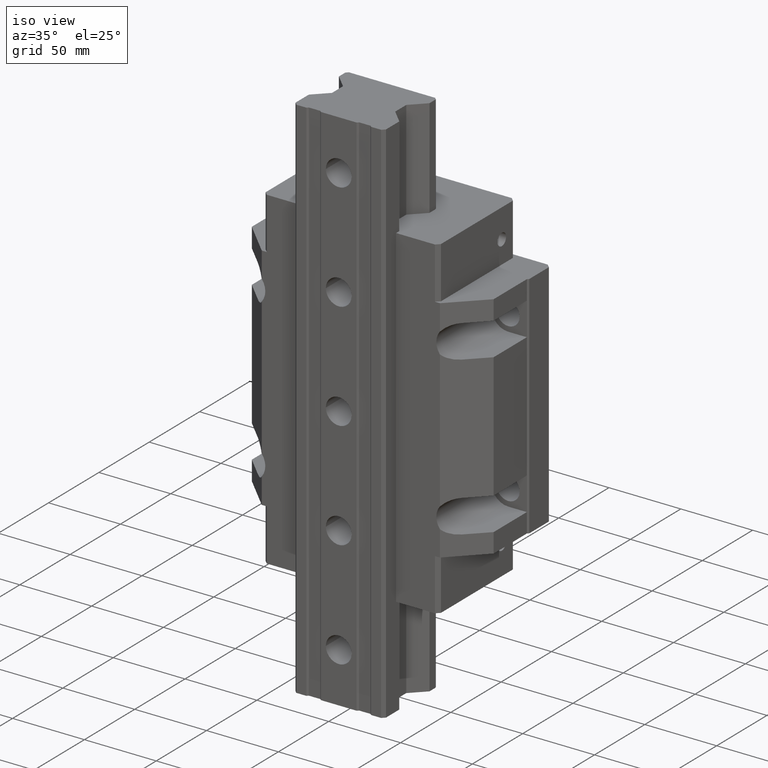
[diagram: clean part render]
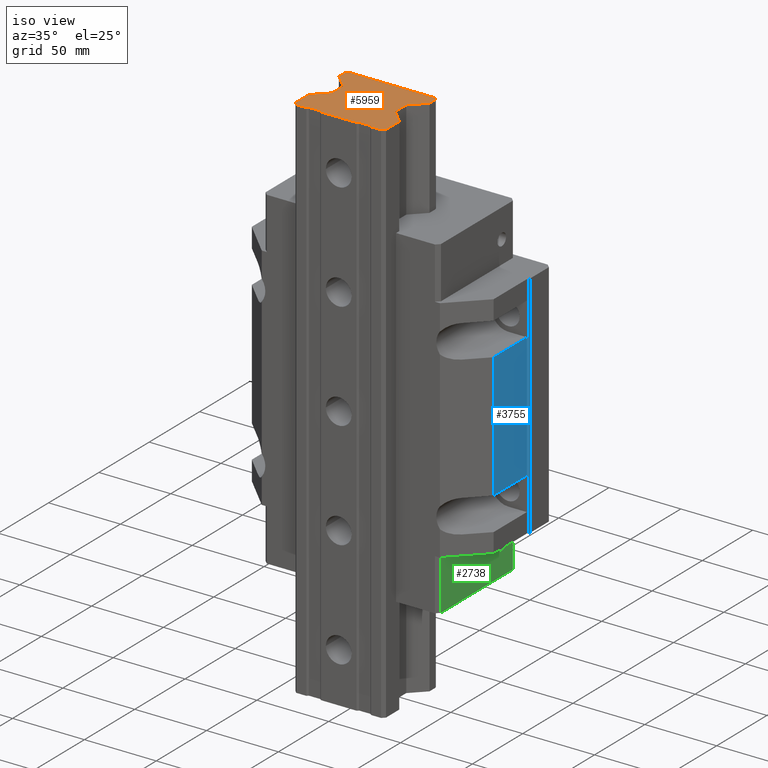
[diagram: same view with three faces highlighted in distinct colors, each labeled with its STEP entity id]
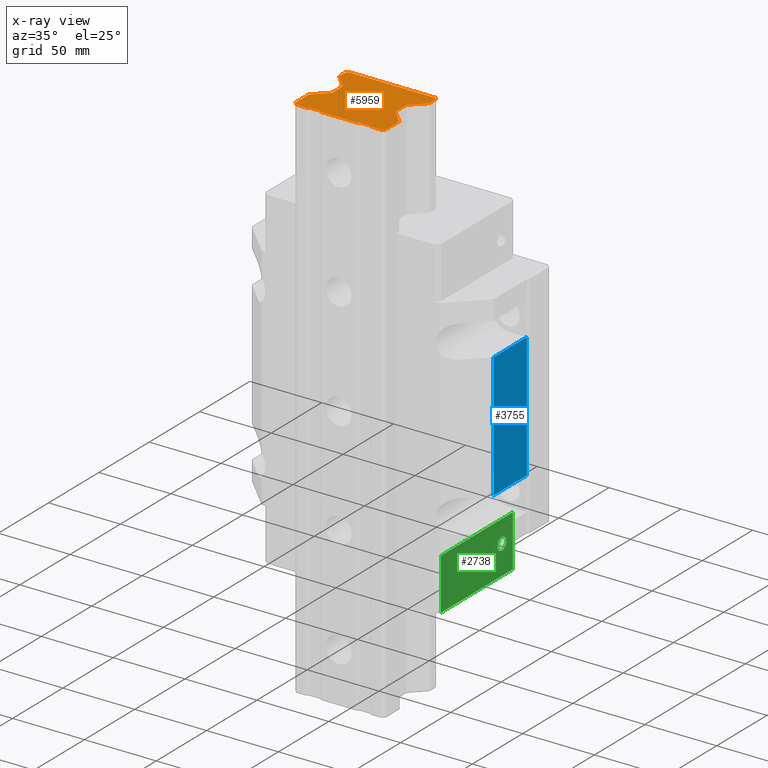
[diagram: x-ray of the same camera — body ghosted, the three highlighted faces saturated]
A machine part, iso view with three faces highlighted in distinct colors.
The next image is the same camera in x-ray (body ghosted, the three faces saturated) — at least one of them is partly hidden behind the body in this view.
Their STEP definitions:

[orange] entity #5959 — the highlighted planar face has unit normal (0, 0, 1).
#4506=DIRECTION('',(-1.192119434070E-6,9.999999999993E-1,0.E0));
#4507=VECTOR('',#4506,1.321909750735E1);
#4508=CARTESIAN_POINT('',(3.149996388354E1,-8.800006839805E1,1.85E2));
#4509=LINE('',#4508,#4507);
#4518=DIRECTION('',(9.999999999995E-1,-9.523649068492E-7,0.E0));
#4519=VECTOR('',#4518,7.000118888879E0);
#4520=CARTESIAN_POINT('',(2.249994305552E1,-8.99999895E1,1.85E2));
#4521=LINE('',#4520,#4519);
#4530=DIRECTION('',(1.E0,-7.460689785897E-14,0.E0));
#4531=VECTOR('',#4530,8.000009585799E0);
#4532=CARTESIAN_POINT('',(1.349994141586E1,-8.8999987E1,1.85E2));
#4533=LINE('',#4532,#4531);
#4542=DIRECTION('',(9.999999999998E-1,-5.787036611730E-7,0.E0));
#4543=VECTOR('',#4542,2.499998958334E1);
#4544=CARTESIAN_POINT('',(-1.250004234953E1,-8.999996674538E1,1.85E2));
#4545=LINE('',#4544,#4543);
#4604=DIRECTION('',(9.999999999993E-1,-1.157407514335E-6,0.E0));
#4605=VECTOR('',#4604,8.000009585764E0);
#4606=CARTESIAN_POINT('',(-2.150006313121E1,-8.899994591203E1,1.85E2));
#4607=LINE('',#4606,#4605);
#4616=DIRECTION('',(1.E0,-2.050434927234E-7,0.E0));
#4617=VECTOR('',#4616,7.000118888904E0);
#4618=CARTESIAN_POINT('',(-2.950016747676E1,-8.999993794889E1,1.85E2));
#4619=LINE('',#4618,#4617);
#4628=DIRECTION('',(-4.698236218248E-7,-9.999999999999E-1,-1.075030126273E-14));
#4629=VECTOR('',#4628,1.321902927918E1);
#4630=CARTESIAN_POINT('',(-3.150006690872E1,-7.478096871983E1,1.85E2));
#4631=LINE('',#4630,#4629);
#4640=DIRECTION('',(-6.741184540886E-14,-1.E0,0.E0));
#4641=VECTOR('',#4640,1.096193763438E1);
#4642=CARTESIAN_POINT('',(-2.200005994421E1,-5.431902284949E1,1.85E2));
#4643=LINE('',#4642,#4641);
#4648=DIRECTION('',(1.791971611702E-8,-1.E0,1.925325943885E-14));
#4649=VECTOR('',#4648,5.904809940505E0);
#4650=CARTESIAN_POINT('',(-3.150005997114E1,-3.891421297786E1,1.85E2));
#4651=LINE('',#4650,#4649);
#4668=DIRECTION('',(-9.999999999998E-1,5.748455098222E-7,0.E0));
#4669=VECTOR('',#4668,5.999994313287E1);
#4670=CARTESIAN_POINT('',(2.999992672841E1,-3.699998904322E1,1.85E2));
#4671=LINE('',#4670,#4669);
#4784=DIRECTION('',(1.791960607593E-8,1.E0,-1.925326015351E-14));
#4785=VECTOR('',#4784,5.904809721325E0);
#4786=CARTESIAN_POINT('',(3.149993986533E1,-4.481902291836E1,1.85E2));
#4787=LINE('',#4786,#4785);
#4796=DIRECTION('',(-9.204309661595E-14,1.E0,0.E0));
#4797=VECTOR('',#4796,1.096193763438E1);
#4798=CARTESIAN_POINT('',(2.199993994421E1,-6.528096048387E1,1.85E2));
#4799=LINE('',#4798,#4797);
#4800=DIRECTION('',(7.071066983338E-1,-7.071068640392E-1,0.E0));
#4801=VECTOR('',#4800,1.343504198584E1);
#4802=CARTESIAN_POINT('',(2.199993994421E1,-6.528096048387E1,1.85E2));
#4803=LINE('',#4802,#4801);
#4804=DIRECTION('',(-7.071022149275E-1,-7.071113474161E-1,0.E0));
#4805=VECTOR('',#4804,2.828306710001E0);
#4806=CARTESIAN_POINT('',(3.149996388354E1,-8.800006839805E1,1.85E2));
#4807=LINE('',#4806,#4805);
#4808=DIRECTION('',(-7.071030879003E-1,7.071104744535E-1,0.E0));
#4809=VECTOR('',#4808,1.414209711394E0);
#4810=CARTESIAN_POINT('',(2.249994305552E1,-8.99999895E1,1.85E2));
#4811=LINE('',#4810,#4809);
#4812=DIRECTION('',(-7.071067702587E-1,-7.071067921144E-1,2.009730008553E-14));
#4813=VECTOR('',#4812,1.414205356414E0);
#4814=CARTESIAN_POINT('',(1.349994141586E1,-8.8999987E1,1.85E2));
#4815=LINE('',#4814,#4813);
#4816=DIRECTION('',(-7.071066474888E-1,7.071069148842E-1,0.E0));
#4817=VECTOR('',#4816,1.414229663194E0);
#4818=CARTESIAN_POINT('',(-1.250004234953E1,-8.999996674538E1,1.85E2));
#4819=LINE('',#4818,#4817);
#4820=DIRECTION('',(-7.071039472282E-1,-7.071096151335E-1,0.E0));
#4821=VECTOR('',#4820,1.414198662817E0);
#4822=CARTESIAN_POINT('',(-2.150006313121E1,-8.899994591203E1,1.85E2));
#4823=LINE('',#4822,#4821);
#4824=DIRECTION('',(-7.071007161947E-1,7.071128461263E-1,0.E0));
#4825=VECTOR('',#4824,2.828317942227E0);
#4826=CARTESIAN_POINT('',(-2.950016747676E1,-8.999993794889E1,1.85E2));
#4827=LINE('',#4826,#4825);
#4828=DIRECTION('',(7.071067338682E-1,7.071068285049E-1,0.E0));
#4829=VECTOR('',#4828,1.343503959090E1);
#4830=CARTESIAN_POINT('',(-3.150006690872E1,-7.478096871983E1,1.85E2));
#4831=LINE('',#4830,#4829);
#4832=DIRECTION('',(-7.071067808142E-1,7.071067815589E-1,0.E0));
#4833=VECTOR('',#4832,1.343502873807E1);
#4834=CARTESIAN_POINT('',(-2.200005994421E1,-5.431902284949E1,1.85E2));
#4835=LINE('',#4834,#4833);
#4836=CARTESIAN_POINT('',(-3.050006E1,-3.891421356237E1,1.85E2));
#4837=DIRECTION('',(0.E0,0.E0,-1.E0));
#4838=DIRECTION('',(-9.999999999991E-1,1.315157298620E-6,0.E0));
#4839=AXIS2_PLACEMENT_3D('',#4836,#4837,#4838);
#4841=DIRECTION('',(7.071062387916E-1,7.071073235811E-1,3.329687575375E-14));
#4842=VECTOR('',#4841,1.707169744128E0);
#4843=CARTESIAN_POINT('',(-3.120716678119E1,-3.820710678119E1,1.85E2));
#4844=LINE('',#4843,#4842);
#4845=DIRECTION('',(7.071074591719E-1,-7.071061032005E-1,-3.329776966970E-14));
#4846=VECTOR('',#4845,1.707123913243E0);
#4847=CARTESIAN_POINT('',(2.999992672841E1,-3.699998904322E1,1.85E2));
#4848=LINE('',#4847,#4846);
#4849=CARTESIAN_POINT('',(3.049994E1,-3.891421356237E1,1.85E2));
#4850=DIRECTION('',(0.E0,0.E0,-1.E0));
#4851=DIRECTION('',(7.071067812118E-1,7.071067811613E-1,0.E0));
#4852=AXIS2_PLACEMENT_3D('',#4849,#4850,#4851);
#4854=DIRECTION('',(-7.071067808141E-1,-7.071067815590E-1,0.E0));
#4855=VECTOR('',#4854,1.343502873807E1);
#4856=CARTESIAN_POINT('',(3.149993986533E1,-4.481902291836E1,1.85E2));
#4857=LINE('',#4856,#4855);
#5230=CARTESIAN_POINT('',(3.149994812479E1,-7.478097089071E1,1.85E2));
#5231=VERTEX_POINT('',#5230);
#5232=CARTESIAN_POINT('',(2.199993994421E1,-6.528096048387E1,1.85E2));
#5233=VERTEX_POINT('',#5232);
#5234=CARTESIAN_POINT('',(3.149996388354E1,-8.800006839805E1,1.85E2));
#5235=VERTEX_POINT('',#5234);
#5236=CARTESIAN_POINT('',(2.950006194440E1,-8.999999616667E1,1.85E2));
#5237=VERTEX_POINT('',#5236);
#5238=CARTESIAN_POINT('',(2.249994305552E1,-8.99999895E1,1.85E2));
#5239=VERTEX_POINT('',#5238);
#5240=CARTESIAN_POINT('',(2.149995100166E1,-8.8999987E1,1.85E2));
#5241=VERTEX_POINT('',#5240);
#5242=CARTESIAN_POINT('',(1.349994141586E1,-8.8999987E1,1.85E2));
#5243=VERTEX_POINT('',#5242);
#5244=CARTESIAN_POINT('',(1.249994723380E1,-8.999998121296E1,1.85E2));
#5245=VERTEX_POINT('',#5244);
#5246=CARTESIAN_POINT('',(-1.250004234953E1,-8.999996674538E1,1.85E2));
#5247=VERTEX_POINT('',#5246);
#5268=CARTESIAN_POINT('',(-1.350005354545E1,-8.899995517130E1,1.85E2));
#5269=VERTEX_POINT('',#5268);
#5270=CARTESIAN_POINT('',(-2.150006313121E1,-8.899994591203E1,1.85E2));
#5271=VERTEX_POINT('',#5270);
#5272=CARTESIAN_POINT('',(-2.250004858785E1,-8.999993938422E1,1.85E2));
#5273=VERTEX_POINT('',#5272);
#5274=CARTESIAN_POINT('',(-2.950016747676E1,-8.999993794889E1,1.85E2));
#5275=VERTEX_POINT('',#5274);
#5276=CARTESIAN_POINT('',(-3.150007311933E1,-8.799999799901E1,1.85E2));
#5277=VERTEX_POINT('',#5276);
#5278=CARTESIAN_POINT('',(-3.150006690872E1,-7.478096871983E1,1.85E2));
#5279=VERTEX_POINT('',#5278);
#5280=CARTESIAN_POINT('',(-2.200005994421E1,-6.528096048387E1,1.85E2));
#5281=VERTEX_POINT('',#5280);
#5282=CARTESIAN_POINT('',(-2.200005994421E1,-5.431902284949E1,1.85E2));
#5283=VERTEX_POINT('',#5282);
#5284=CARTESIAN_POINT('',(-3.150005986533E1,-4.481902291836E1,1.85E2));
#5285=VERTEX_POINT('',#5284);
#5286=CARTESIAN_POINT('',(-3.150005997114E1,-3.891421297786E1,1.85E2));
#5287=VERTEX_POINT('',#5286);
#5288=CARTESIAN_POINT('',(-3.120716678119E1,-3.820710678119E1,1.85E2));
#5289=VERTEX_POINT('',#5288);
#5290=CARTESIAN_POINT('',(-3.000001640444E1,-3.699995455252E1,1.85E2));
#5291=VERTEX_POINT('',#5290);
#5292=CARTESIAN_POINT('',(2.999992672841E1,-3.699998904322E1,1.85E2));
#5293=VERTEX_POINT('',#5292);
#5334=CARTESIAN_POINT('',(3.120704678120E1,-3.820710678120E1,1.85E2));
#5335=VERTEX_POINT('',#5334);
#5336=CARTESIAN_POINT('',(3.149993997114E1,-3.891421319704E1,1.85E2));
#5337=VERTEX_POINT('',#5336);
#5338=CARTESIAN_POINT('',(3.149993986533E1,-4.481902291836E1,1.85E2));
#5339=VERTEX_POINT('',#5338);
#5340=CARTESIAN_POINT('',(2.199993994421E1,-5.431902284949E1,1.85E2));
#5341=VERTEX_POINT('',#5340);
#5926=CARTESIAN_POINT('',(0.E0,0.E0,1.85E2));
#5927=DIRECTION('',(0.E0,0.E0,1.E0));
#5928=DIRECTION('',(1.E0,0.E0,0.E0));
#5929=AXIS2_PLACEMENT_3D('',#5926,#5927,#5928);
#5930=PLANE('',#5929);
#5931=ORIENTED_EDGE('',*,*,#5490,.T.);
#5932=ORIENTED_EDGE('',*,*,#5505,.F.);
#5933=ORIENTED_EDGE('',*,*,#5519,.T.);
#5934=ORIENTED_EDGE('',*,*,#5533,.F.);
#5935=ORIENTED_EDGE('',*,*,#5547,.T.);
#5936=ORIENTED_EDGE('',*,*,#5561,.F.);
#5937=ORIENTED_EDGE('',*,*,#5575,.T.);
#5938=ORIENTED_EDGE('',*,*,#5589,.F.);
#5939=ORIENTED_EDGE('',*,*,#5633,.T.);
#5940=ORIENTED_EDGE('',*,*,#5647,.F.);
#5941=ORIENTED_EDGE('',*,*,#5661,.T.);
#5942=ORIENTED_EDGE('',*,*,#5675,.F.);
#5943=ORIENTED_EDGE('',*,*,#5689,.T.);
#5944=ORIENTED_EDGE('',*,*,#5703,.F.);
#5945=ORIENTED_EDGE('',*,*,#5717,.T.);
#5946=ORIENTED_EDGE('',*,*,#5731,.F.);
#5947=ORIENTED_EDGE('',*,*,#5745,.T.);
#5948=ORIENTED_EDGE('',*,*,#5759,.F.);
#5949=ORIENTED_EDGE('',*,*,#5773,.T.);
#5950=ORIENTED_EDGE('',*,*,#5787,.T.);
#5951=ORIENTED_EDGE('',*,*,#5801,.F.);
#5952=ORIENTED_EDGE('',*,*,#5865,.T.);
#5953=ORIENTED_EDGE('',*,*,#5879,.T.);
#5954=ORIENTED_EDGE('',*,*,#5893,.F.);
#5955=ORIENTED_EDGE('',*,*,#5907,.T.);
#5956=ORIENTED_EDGE('',*,*,#5920,.F.);
#5957=EDGE_LOOP('',(#5931,#5932,#5933,#5934,#5935,#5936,#5937,#5938,#5939,#5940,
#5941,#5942,#5943,#5944,#5945,#5946,#5947,#5948,#5949,#5950,#5951,#5952,#5953,
#5954,#5955,#5956));
#5958=FACE_OUTER_BOUND('',#5957,.F.);
#5959=ADVANCED_FACE('',(#5958),#5930,.T.);
#4840=CIRCLE('',#4839,1.E0);
#4853=CIRCLE('',#4852,1.E0);
#5490=EDGE_CURVE('',#5233,#5231,#4803,.T.);
#5505=EDGE_CURVE('',#5235,#5231,#4509,.T.);
#5519=EDGE_CURVE('',#5235,#5237,#4807,.T.);
#5533=EDGE_CURVE('',#5239,#5237,#4521,.T.);
#5547=EDGE_CURVE('',#5239,#5241,#4811,.T.);
#5561=EDGE_CURVE('',#5243,#5241,#4533,.T.);
#5575=EDGE_CURVE('',#5243,#5245,#4815,.T.);
#5589=EDGE_CURVE('',#5247,#5245,#4545,.T.);
#5633=EDGE_CURVE('',#5247,#5269,#4819,.T.);
#5647=EDGE_CURVE('',#5271,#5269,#4607,.T.);
#5661=EDGE_CURVE('',#5271,#5273,#4823,.T.);
#5675=EDGE_CURVE('',#5275,#5273,#4619,.T.);
#5689=EDGE_CURVE('',#5275,#5277,#4827,.T.);
#5703=EDGE_CURVE('',#5279,#5277,#4631,.T.);
#5717=EDGE_CURVE('',#5279,#5281,#4831,.T.);
#5731=EDGE_CURVE('',#5283,#5281,#4643,.T.);
#5745=EDGE_CURVE('',#5283,#5285,#4835,.T.);
#5759=EDGE_CURVE('',#5287,#5285,#4651,.T.);
#5773=EDGE_CURVE('',#5287,#5289,#4840,.T.);
#5787=EDGE_CURVE('',#5289,#5291,#4844,.T.);
#5801=EDGE_CURVE('',#5293,#5291,#4671,.T.);
#5865=EDGE_CURVE('',#5293,#5335,#4848,.T.);
#5879=EDGE_CURVE('',#5335,#5337,#4853,.T.);
#5893=EDGE_CURVE('',#5339,#5337,#4787,.T.);
#5907=EDGE_CURVE('',#5339,#5341,#4857,.T.);
#5920=EDGE_CURVE('',#5233,#5341,#4799,.T.);

[blue] entity #3755 — the highlighted planar face has unit normal (1, -0, 0).
#1147=DIRECTION('',(0.E0,1.886613470811E-14,1.E0));
#1148=VECTOR('',#1147,8.7E1);
#1149=CARTESIAN_POINT('',(8.399993342029E1,-2.299999442005E1,-4.35E1));
#1150=LINE('',#1149,#1148);
#1281=DIRECTION('',(-1.317360658659E-7,1.E0,0.E0));
#1282=VECTOR('',#1281,3.300000042175E1);
#1283=CARTESIAN_POINT('',(8.399993776758E1,-5.599999484179E1,4.35E1));
#1284=LINE('',#1283,#1282);
#1285=DIRECTION('',(0.E0,3.136188626803E-14,1.E0));
#1286=VECTOR('',#1285,8.7E1);
#1287=CARTESIAN_POINT('',(8.399993776758E1,-5.599999484180E1,-4.35E1));
#1288=LINE('',#1287,#1286);
#1293=DIRECTION('',(-1.317360774930E-7,1.E0,0.E0));
#1294=VECTOR('',#1293,3.300000042175E1);
#1295=CARTESIAN_POINT('',(8.399993776758E1,-5.599999484180E1,-4.35E1));
#1296=LINE('',#1295,#1294);
#1898=CARTESIAN_POINT('',(8.399993342029E1,-2.299999442005E1,-4.35E1));
#1900=VERTEX_POINT('',#1898);
#1901=CARTESIAN_POINT('',(8.399993342029E1,-2.299999442004E1,4.35E1));
#1902=VERTEX_POINT('',#1901);
#1912=CARTESIAN_POINT('',(8.399993776758E1,-5.599999484179E1,4.35E1));
#1914=VERTEX_POINT('',#1912);
#1916=CARTESIAN_POINT('',(8.399993776758E1,-5.599999484180E1,-4.35E1));
#1917=VERTEX_POINT('',#1916);
#3743=CARTESIAN_POINT('',(8.399994E1,-5.5999992E1,-8.E1));
#3744=DIRECTION('',(1.E0,-1.421084653320E-14,0.E0));
#3745=DIRECTION('',(1.421084653320E-14,1.E0,0.E0));
#3746=AXIS2_PLACEMENT_3D('',#3743,#3744,#3745);
#3747=PLANE('',#3746);
#3748=ORIENTED_EDGE('',*,*,#3679,.T.);
#3749=ORIENTED_EDGE('',*,*,#3558,.F.);
#3751=ORIENTED_EDGE('',*,*,#3750,.F.);
#3752=ORIENTED_EDGE('',*,*,#3658,.T.);
#3753=EDGE_LOOP('',(#3748,#3749,#3751,#3752));
#3754=FACE_OUTER_BOUND('',#3753,.F.);
#3755=ADVANCED_FACE('',(#3754),#3747,.T.);
#3558=EDGE_CURVE('',#1900,#1902,#1150,.T.);
#3658=EDGE_CURVE('',#1917,#1914,#1288,.T.);
#3679=EDGE_CURVE('',#1914,#1902,#1284,.T.);
#3750=EDGE_CURVE('',#1917,#1900,#1296,.T.);

[green] entity #2738 — the highlighted planar face has unit normal (1, 0, 0).
#561=DIRECTION('',(0.E0,0.E0,-1.E0));
#562=VECTOR('',#561,3.6E1);
#563=CARTESIAN_POINT('',(6.099994E1,-3.999999999999E0,-8.E1));
#564=LINE('',#563,#562);
#565=DIRECTION('',(0.E0,-1.E0,0.E0));
#566=VECTOR('',#565,7.1499992E1);
#567=CARTESIAN_POINT('',(6.099994E1,-3.999999999999E0,-1.16E2));
#568=LINE('',#567,#566);
#569=DIRECTION('',(0.E0,1.E0,0.E0));
#570=VECTOR('',#569,7.1499992E1);
#571=CARTESIAN_POINT('',(6.099994E1,-7.5499992E1,-8.E1));
#572=LINE('',#571,#570);
#595=CARTESIAN_POINT('',(6.099994E1,-1.5E1,-9.58E1));
#596=DIRECTION('',(-1.E0,1.908031056366E-14,0.E0));
#597=DIRECTION('',(0.E0,0.E0,1.E0));
#598=AXIS2_PLACEMENT_3D('',#595,#596,#597);
#600=CARTESIAN_POINT('',(6.099994E1,-1.5E1,-9.58E1));
#601=DIRECTION('',(-1.E0,1.908031056366E-14,0.E0));
#602=DIRECTION('',(0.E0,0.E0,-1.E0));
#603=AXIS2_PLACEMENT_3D('',#600,#601,#602);
#605=DIRECTION('',(0.E0,0.E0,-1.E0));
#606=VECTOR('',#605,3.6E1);
#607=CARTESIAN_POINT('',(6.099994E1,-7.5499992E1,-8.E1));
#608=LINE('',#607,#606);
#1617=CARTESIAN_POINT('',(6.099994E1,-3.999999999999E0,-8.E1));
#1618=VERTEX_POINT('',#1617);
#1619=CARTESIAN_POINT('',(6.099994E1,-7.5499992E1,-8.E1));
#1620=VERTEX_POINT('',#1619);
#1669=CARTESIAN_POINT('',(6.099994E1,-3.999999999999E0,-1.16E2));
#1670=VERTEX_POINT('',#1669);
#1711=CARTESIAN_POINT('',(6.099994E1,-7.5499992E1,-1.16E2));
#1712=VERTEX_POINT('',#1711);
#2044=CARTESIAN_POINT('',(6.099994E1,-1.5E1,-9.155E1));
#2045=CARTESIAN_POINT('',(6.099994E1,-1.5E1,-1.0005E2));
#2046=VERTEX_POINT('',#2044);
#2047=VERTEX_POINT('',#2045);
#2720=CARTESIAN_POINT('',(6.099994E1,-7.5499992E1,8.E1));
#2721=DIRECTION('',(1.E0,0.E0,0.E0));
#2722=DIRECTION('',(0.E0,1.E0,0.E0));
#2723=AXIS2_PLACEMENT_3D('',#2720,#2721,#2722);
#2724=PLANE('',#2723);
#2725=ORIENTED_EDGE('',*,*,#2275,.T.);
#2726=ORIENTED_EDGE('',*,*,#2328,.T.);
#2728=ORIENTED_EDGE('',*,*,#2727,.F.);
#2729=ORIENTED_EDGE('',*,*,#2197,.T.);
#2730=EDGE_LOOP('',(#2725,#2726,#2728,#2729));
#2731=FACE_OUTER_BOUND('',#2730,.F.);
#2733=ORIENTED_EDGE('',*,*,#2732,.F.);
#2735=ORIENTED_EDGE('',*,*,#2734,.F.);
#2736=EDGE_LOOP('',(#2733,#2735));
#2737=FACE_BOUND('',#2736,.F.);
#2738=ADVANCED_FACE('',(#2731,#2737),#2724,.T.);
#599=CIRCLE('',#598,4.25E0);
#604=CIRCLE('',#603,4.25E0);
#2197=EDGE_CURVE('',#1620,#1618,#572,.T.);
#2275=EDGE_CURVE('',#1618,#1670,#564,.T.);
#2328=EDGE_CURVE('',#1670,#1712,#568,.T.);
#2727=EDGE_CURVE('',#1620,#1712,#608,.T.);
#2732=EDGE_CURVE('',#2046,#2047,#599,.T.);
#2734=EDGE_CURVE('',#2047,#2046,#604,.T.);